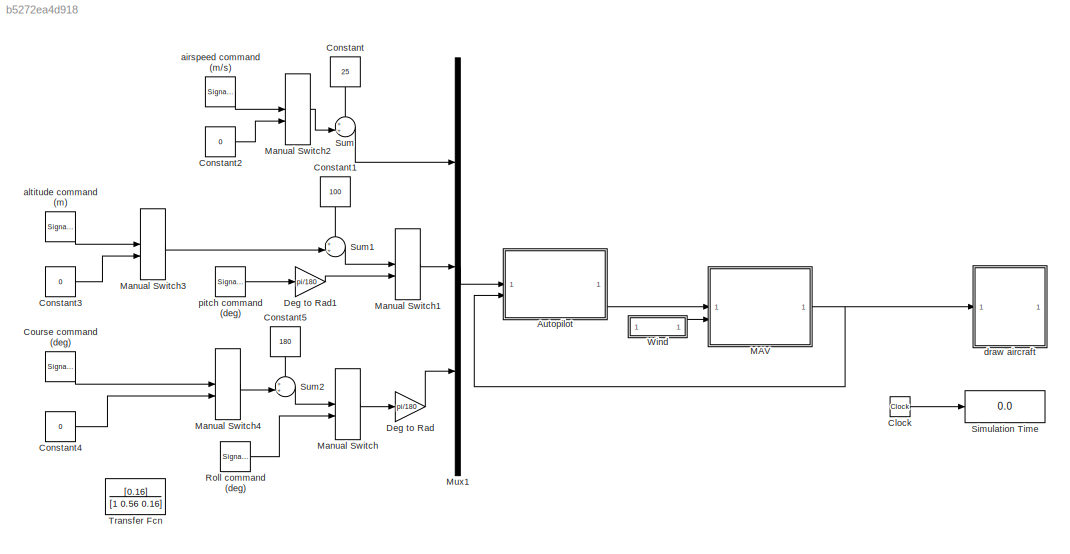
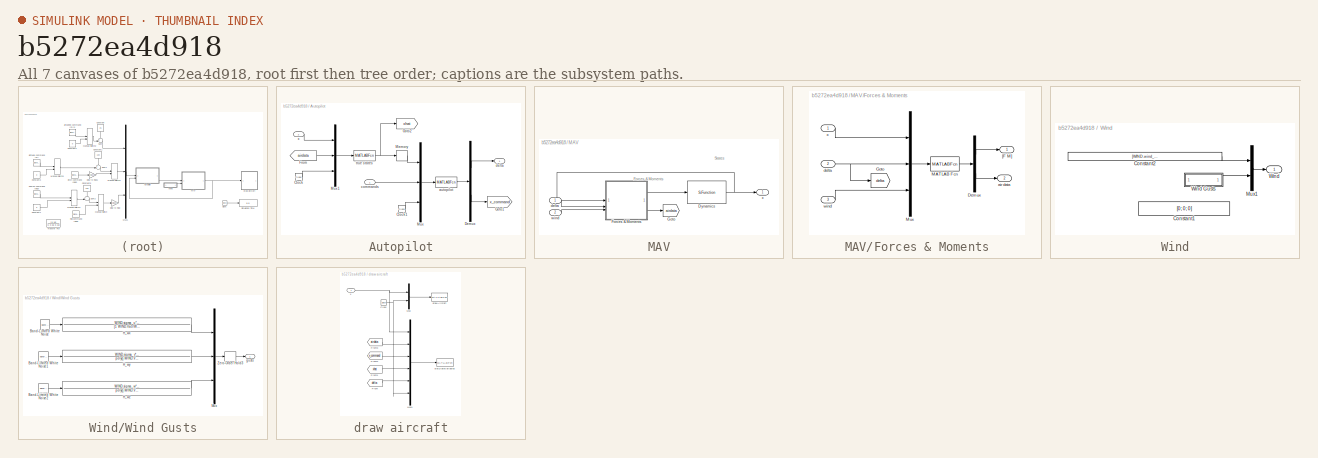
[diagram: thumbnail index - all 7 canvases of the model, root first then tree order]
MODEL slx_b5272ea4d918
KIND model
CONFIG AbsTol = auto
CONFIG EnableMultiTasking = on
CONFIG FixedStep = auto
CONFIG InitFcn = clear all\npath(pathdef)\naddpath('../chap2')\naddpath('../../parameters/')\naddpath('../../tools/')\naerosonde_parameters\nsimulation_parameters\nwind_parameters\naddpath('../chap3')\naddpath('../chap4')\naddpath('../chap6')\ncompute_autopilot_gains\n
CONFIG MaxStep = auto
CONFIG MinStep = auto
CONFIG RelTol = 1e-3
CONFIG SampleTimeConstraint = Unconstrained
CONFIG SolverName = ode15s
CONFIG StartTime = 0.0
CONFIG StopTime = 10000
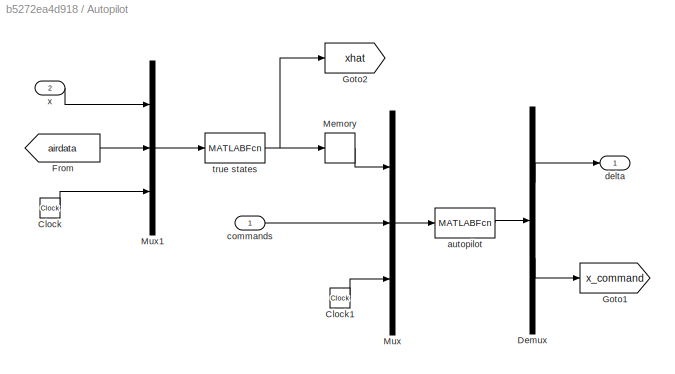
BLOCK [SubSystem] Autopilot
BLOCK [Clock] Autopilot/Clock
BLOCK [Clock] Autopilot/Clock1
BLOCK [Demux] Autopilot/Demux
  Outputs = [4;12]
BLOCK [From] Autopilot/From
  GotoTag = airdata
  TagVisibility = global
BLOCK [Goto] Autopilot/Goto1
  GotoTag = x_command
  TagVisibility = global
BLOCK [Goto] Autopilot/Goto2
  GotoTag = xhat
  TagVisibility = global
BLOCK [Memory] Autopilot/Memory
BLOCK [Mux] Autopilot/Mux
  DisplayOption = bar
  Inputs = 3
BLOCK [Mux] Autopilot/Mux1
  DisplayOption = bar
  Inputs = 3
BLOCK [MATLABFcn] Autopilot/autopilot
  MATLABFcn = autopilot(u,AP)
  OutputDimensions = 4+12
  SampleTime = SIM.ts_simulation
BLOCK [Inport] Autopilot/commands
BLOCK [Outport] Autopilot/delta
  VectorParamsAs1DForOutWhenUnconnected = off
BLOCK [MATLABFcn] Autopilot/true states
  MATLABFcn = true_states(u)
  OutputDimensions = 19
  SampleTime = SIM.ts_simulation
BLOCK [Inport] Autopilot/x
  Port = 2
BLOCK [Clock] Clock
BLOCK [Constant] Constant
  NameLocation = left
  Value = 25
BLOCK [Constant] Constant1
  NameLocation = left
  Value = 100
BLOCK [Constant] Constant2
  Value = 0
BLOCK [Constant] Constant3
  Value = 0
BLOCK [Constant] Constant4
  Value = 0
BLOCK [Constant] Constant5
  NameLocation = left
  Value = 180
BLOCK [SignalGenerator] Course command (deg)
  Amplitude = 45
  Frequency = .02
  WaveForm = square
BLOCK [Gain] Deg to Rad
  Gain = pi/180
BLOCK [Gain] Deg to Rad1
  Gain = pi/180
BLOCK [SubSystem] MAV
BLOCK [S-Function] MAV/Dynamics
  EnableBusSupport = off
  FunctionName = mav_dynamics
  Parameters = MAV
  SFcnIsStateOwnerBlock = off
  SFunctionDeploymentMode = off
BLOCK [SubSystem] MAV/Forces & Moments
BLOCK [Demux] MAV/Forces & Moments/Demux
  Outputs = [6;6]
BLOCK [Goto] MAV/Forces & Moments/Goto
  GotoTag = delta
  TagVisibility = global
BLOCK [MATLABFcn] MAV/Forces & Moments/MATLAB Fcn
  MATLABFcn = forces_moments(u(1:12),u(13:16),u(17:22),MAV)
  OutputDimensions = 12
BLOCK [Mux] MAV/Forces & Moments/Mux
  DisplayOption = bar
  Inputs = 3
BLOCK [Outport] MAV/Forces & Moments/[F M]
  VectorParamsAs1DForOutWhenUnconnected = off
BLOCK [Outport] MAV/Forces & Moments/air data
  Port = 2
  VectorParamsAs1DForOutWhenUnconnected = off
BLOCK [Inport] MAV/Forces & Moments/delta
  Port = 2
BLOCK [Inport] MAV/Forces & Moments/wind
  Port = 3
BLOCK [Inport] MAV/Forces & Moments/x
BLOCK [Goto] MAV/Goto
  GotoTag = airdata
  TagVisibility = global
BLOCK [Inport] MAV/delta
BLOCK [Inport] MAV/wind
  Port = 2
BLOCK [Outport] MAV/x
  VectorParamsAs1DForOutWhenUnconnected = off
BLOCK [ManualSwitch] Manual Switch
BLOCK [ManualSwitch] Manual Switch1
BLOCK [ManualSwitch] Manual Switch2
BLOCK [ManualSwitch] Manual Switch3
BLOCK [ManualSwitch] Manual Switch4
BLOCK [Mux] Mux1
  DisplayOption = bar
  Inputs = 3
BLOCK [SignalGenerator] Roll command (deg)
  Amplitude = 20
  Frequency = .1
  WaveForm = square
BLOCK [Display] Simulation Time
  Decimation = 1
BLOCK [Sum] Sum
  Inputs = ++|
BLOCK [Sum] Sum1
  Inputs = ++|
BLOCK [Sum] Sum2
  Inputs = ++|
BLOCK [TransferFcn] Transfer Fcn
  Denominator = [1 0.56 0.16]
  Numerator = [0.16]
BLOCK [SubSystem] Wind
BLOCK [Constant] Wind/Constant1
  Value = [0; 0; 0]
BLOCK [Constant] Wind/Constant2
  Value = [WIND.wind_n; WIND.wind_e; WIND.wind_d]
BLOCK [Mux] Wind/Mux1
  DisplayOption = bar
  Inputs = 2
BLOCK [Outport] Wind/Wind
  VectorParamsAs1DForOutWhenUnconnected = off
BLOCK [SubSystem] Wind/Wind Gusts
BLOCK [Reference] Wind/Wind Gusts/Band-Limited White Noise  REF=simulink/Sources/Band-Limited
White Noise
  SourceBlock = simulink/Sources/Band-Limited\nWhite Noise
  SourceType = Band-Limited White Noise.
BLOCK [Reference] Wind/Wind Gusts/Band-Limited White Noise1  REF=simulink/Sources/Band-Limited
White Noise
  SourceBlock = simulink/Sources/Band-Limited\nWhite Noise
  SourceType = Band-Limited White Noise.
BLOCK [Reference] Wind/Wind Gusts/Band-Limited White Noise2  REF=simulink/Sources/Band-Limited
White Noise
  SourceBlock = simulink/Sources/Band-Limited\nWhite Noise
  SourceType = Band-Limited White Noise.
BLOCK [TransferFcn] Wind/Wind Gusts/H_wx
  Denominator = [1 WIND.Va0/WIND.L_u]
  Numerator = WIND.sigma_u*sqrt(2*WIND.Va0/WIND.L_u)
BLOCK [TransferFcn] Wind/Wind Gusts/H_wy
  Denominator = poly([-WIND.Va0/WIND.L_v, -WIND.Va0/WIND.L_v])
  Numerator = WIND.sigma_v*sqrt(3*WIND.Va0/WIND.L_v)*[0, 1, WIND.Va0/sqrt(3)/WIND.L_v]
BLOCK [TransferFcn] Wind/Wind Gusts/H_wz
  Denominator = poly([-WIND.Va0/WIND.L_w, -WIND.Va0/WIND.L_w])
  Numerator = WIND.sigma_w*sqrt(3*WIND.Va0/WIND.L_w)*[0, 1, WIND.Va0/sqrt(3)/WIND.L_w]
BLOCK [Mux] Wind/Wind Gusts/Mux
  DisplayOption = bar
  Inputs = 3
BLOCK [ZeroOrderHold] Wind/Wind Gusts/Zero-Order Hold3
  SampleTime = SIM.ts_simulation
BLOCK [Outport] Wind/Wind Gusts/gusts
  VectorParamsAs1DForOutWhenUnconnected = off
BLOCK [SignalGenerator] airspeed command (m//s)
  Amplitude = 4
  Frequency = .02
  WaveForm = square
BLOCK [SignalGenerator] altitude command (m)
  Amplitude = 10
  Frequency = .02
  WaveForm = square
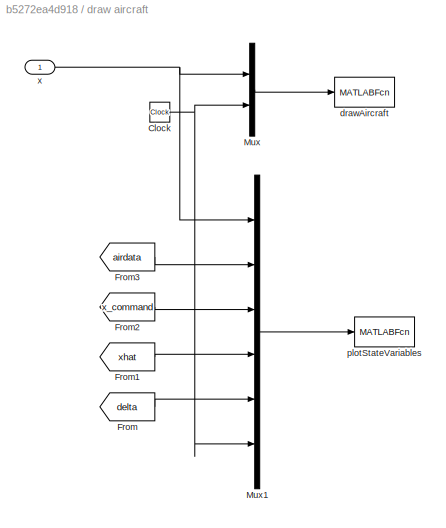
BLOCK [SubSystem] draw aircraft
BLOCK [Clock] draw aircraft/Clock
BLOCK [From] draw aircraft/From
  GotoTag = delta
  IconDisplay = Tag and signal name
  TagVisibility = global
BLOCK [From] draw aircraft/From1
  GotoTag = xhat
  IconDisplay = Tag and signal name
  TagVisibility = global
BLOCK [From] draw aircraft/From2
  GotoTag = x_command
  IconDisplay = Tag and signal name
  TagVisibility = global
BLOCK [From] draw aircraft/From3
  GotoTag = airdata
  IconDisplay = Tag and signal name
  TagVisibility = global
BLOCK [Mux] draw aircraft/Mux
  DisplayOption = bar
  Inputs = 2
BLOCK [Mux] draw aircraft/Mux1
  DisplayOption = bar
  Inputs = 6
BLOCK [MATLABFcn] draw aircraft/drawAircraft
  MATLABFcn = drawAircraft(u)
  OutputDimensions = 0
  SampleTime = SIM.ts_plotting
BLOCK [MATLABFcn] draw aircraft/plotStateVariables
  MATLABFcn = plotmavstatevariables(u)
  OutputDimensions = 0
  SampleTime = SIM.ts_plotting
BLOCK [Inport] draw aircraft/x
BLOCK [SignalGenerator] pitch command (deg)
  Amplitude = 10
  Frequency = .05
  WaveForm = square
ANNOTATION MAV: Forces & Moments
ANNOTATION MAV: States
LINE Autopilot/Clock1:1 -> Autopilot/Mux:3
LINE Autopilot/Clock:1 -> Autopilot/Mux1:3
LINE Autopilot/Demux:1 -> Autopilot/delta:1
LINE Autopilot/Demux:2 -> Autopilot/Goto1:1
LINE Autopilot/From:1 -> Autopilot/Mux1:2
LINE Autopilot/Memory:1 -> Autopilot/Mux:1
LINE Autopilot/Mux1:1 -> Autopilot/true states:1
LINE Autopilot/Mux:1 -> Autopilot/autopilot:1
LINE Autopilot/autopilot:1 -> Autopilot/Demux:1
LINE Autopilot/commands:1 -> Autopilot/Mux:2
NET Autopilot/true states:1 -> Autopilot/Goto2:1, Autopilot/Memory:1
LINE Autopilot/x:1 -> Autopilot/Mux1:1
LINE Autopilot:1 -> MAV:1
LINE Clock:1 -> Simulation Time:1
LINE Constant1:1 -> Sum1:1
LINE Constant2:1 -> Manual Switch2:2
LINE Constant3:1 -> Manual Switch3:2
LINE Constant4:1 -> Manual Switch4:2
LINE Constant5:1 -> Sum2:1
LINE Constant:1 -> Sum:1
LINE Course command (deg):1 -> Manual Switch4:1
LINE Deg to Rad1:1 -> Manual Switch1:2
LINE Deg to Rad:1 -> Mux1:3
NET MAV/Dynamics:1 -> MAV/Forces & Moments:1, MAV/x:1
LINE MAV/Forces & Moments/Demux:1 -> MAV/Forces & Moments/[F M]:1
LINE MAV/Forces & Moments/Demux:2 -> MAV/Forces & Moments/air data:1
LINE MAV/Forces & Moments/MATLAB Fcn:1 -> MAV/Forces & Moments/Demux:1
LINE MAV/Forces & Moments/Mux:1 -> MAV/Forces & Moments/MATLAB Fcn:1
NET MAV/Forces & Moments/delta:1 -> MAV/Forces & Moments/Goto:1, MAV/Forces & Moments/Mux:2
LINE MAV/Forces & Moments/wind:1 -> MAV/Forces & Moments/Mux:3
LINE MAV/Forces & Moments/x:1 -> MAV/Forces & Moments/Mux:1
LINE MAV/Forces & Moments:1 -> MAV/Dynamics:1
LINE MAV/Forces & Moments:2 -> MAV/Goto:1
LINE MAV/delta:1 -> MAV/Forces & Moments:2
LINE MAV/wind:1 -> MAV/Forces & Moments:3
NET MAV:1 -> Autopilot:2, draw aircraft:1
LINE Manual Switch1:1 -> Mux1:2
LINE Manual Switch2:1 -> Sum:2
LINE Manual Switch3:1 -> Sum1:2
LINE Manual Switch4:1 -> Sum2:2
LINE Manual Switch:1 -> Deg to Rad:1
LINE Mux1:1 -> Autopilot:1
LINE Roll command (deg):1 -> Manual Switch:2
LINE Sum1:1 -> Manual Switch1:1
LINE Sum2:1 -> Manual Switch:1
LINE Sum:1 -> Mux1:1
LINE Wind/Constant2:1 -> Wind/Mux1:1
LINE Wind/Mux1:1 -> Wind/Wind:1
LINE Wind/Wind Gusts/Band-Limited White Noise1:1 -> Wind/Wind Gusts/H_wy:1
LINE Wind/Wind Gusts/Band-Limited White Noise2:1 -> Wind/Wind Gusts/H_wz:1
LINE Wind/Wind Gusts/Band-Limited White Noise:1 -> Wind/Wind Gusts/H_wx:1
LINE Wind/Wind Gusts/H_wx:1 -> Wind/Wind Gusts/Mux:1
LINE Wind/Wind Gusts/H_wy:1 -> Wind/Wind Gusts/Mux:2
LINE Wind/Wind Gusts/H_wz:1 -> Wind/Wind Gusts/Mux:3
LINE Wind/Wind Gusts/Mux:1 -> Wind/Wind Gusts/Zero-Order Hold3:1
LINE Wind/Wind Gusts/Zero-Order Hold3:1 -> Wind/Wind Gusts/gusts:1
LINE Wind/Wind Gusts:1 -> Wind/Mux1:2
LINE Wind:1 -> MAV:2
LINE airspeed command (m//s):1 -> Manual Switch2:1
LINE altitude command (m):1 -> Manual Switch3:1
NET draw aircraft/Clock:1 -> draw aircraft/Mux1:6, draw aircraft/Mux:2
LINE draw aircraft/From1:1 -> draw aircraft/Mux1:4
LINE draw aircraft/From2:1 -> draw aircraft/Mux1:3
LINE draw aircraft/From3:1 -> draw aircraft/Mux1:2
LINE draw aircraft/From:1 -> draw aircraft/Mux1:5
LINE draw aircraft/Mux1:1 -> draw aircraft/plotStateVariables:1
LINE draw aircraft/Mux:1 -> draw aircraft/drawAircraft:1
NET draw aircraft/x:1 -> draw aircraft/Mux1:1, draw aircraft/Mux:1
LINE pitch command (deg):1 -> Deg to Rad1:1
note: NET lines group one-source signal fan-out (src -> all destinations, sorted); 1:1 wires keep LINE
